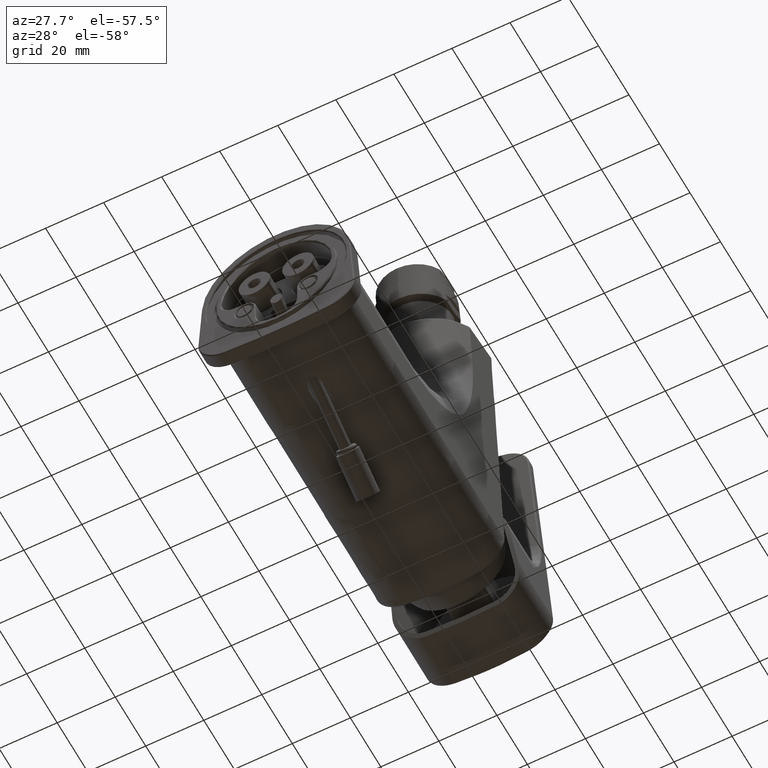
[diagram: clean part render]
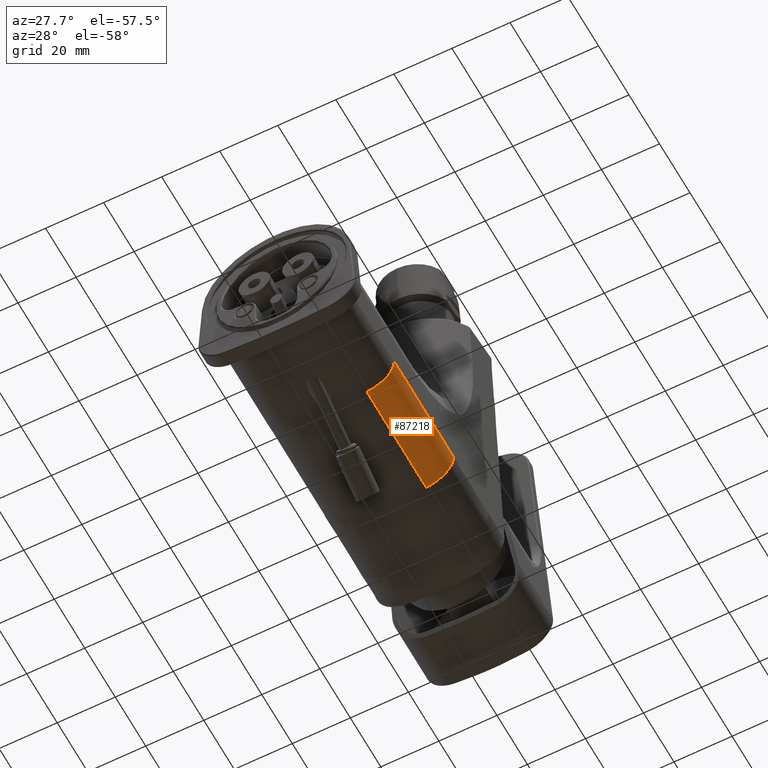
[diagram: same view with one face highlighted and labeled with its STEP entity id]
A machine part, auxiliary view. The second image highlights one B-rep face of the part: STEP entity #87218.
In plain terms, the highlighted face is a freeform B-spline surface patch.
Its self-contained STEP definition (entity closure, byte-faithful):
#7366=CARTESIAN_POINT('',(2.208970727463E1,6.939819935584E1,-1.168438949637E1));
#7396=CARTESIAN_POINT('',(1.209893123909E1,6.939819935584E1,-1.211380096307E1));
#7397=DIRECTION('',(-3.572977058821E-7,9.999999999654E-1,8.312962321084E-6));
#7398=DIRECTION('',(9.990776035537E-1,0.E0,4.294114667048E-2));
#7399=AXIS2_PLACEMENT_3D('',#7396,#7397,#7398);
#7458=CARTESIAN_POINT('',(1.27359259E1,3.041451591486E1,-2.209381710465E1));
#7459=CARTESIAN_POINT('',(1.273595817326E1,3.474692180240E1,-2.209377894983E1));
#7460=CARTESIAN_POINT('',(1.273602268487E1,4.341114937780E1,-2.209370264058E1));
#7461=CARTESIAN_POINT('',(1.273611934752E1,5.640573628581E1,-2.209358817792E1));
#7462=CARTESIAN_POINT('',(1.273618371942E1,6.506762831574E1,-2.209351187030E1));
#7463=CARTESIAN_POINT('',(1.273621588789E1,6.939828254418E1,-2.209347371670E1));
#7465=CARTESIAN_POINT('',(1.273621588789E1,6.939828254418E1,-2.209347371670E1));
#30454=CARTESIAN_POINT('',(2.208972119977E1,3.041443277032E1,
-1.168471348161E1));
#30455=CARTESIAN_POINT('',(2.208972101071E1,3.094384713333E1,
-1.168470908292E1));
#30456=CARTESIAN_POINT('',(2.208972062887E1,3.201311111200E1,
-1.168470019876E1));
#30457=CARTESIAN_POINT('',(2.208972005213E1,3.362806745837E1,
-1.168468678033E1));
#30458=CARTESIAN_POINT('',(2.208971945512E1,3.529977214362E1,
-1.168467289008E1));
#30459=CARTESIAN_POINT('',(2.208971882721E1,3.705794391421E1,
-1.168465828104E1));
#30460=CARTESIAN_POINT('',(2.208971815860E1,3.893003649387E1,
-1.168464272502E1));
#30461=CARTESIAN_POINT('',(2.208971742856E1,4.097406515674E1,
-1.168462573985E1));
#30462=CARTESIAN_POINT('',(2.208971669488E1,4.302824546125E1,
-1.168460866985E1));
#30463=CARTESIAN_POINT('',(2.208971599780E1,4.497988628580E1,
-1.168459245149E1));
#30464=CARTESIAN_POINT('',(2.208971533686E1,4.683030896802E1,
-1.168457707387E1));
#30465=CARTESIAN_POINT('',(2.208971469247E1,4.863433444597E1,
-1.168456208146E1));
#30466=CARTESIAN_POINT('',(2.208971405742E1,5.041218288803E1,
-1.168454730624E1));
#30467=CARTESIAN_POINT('',(2.208971342499E1,5.218265027684E1,
-1.168453259201E1));
#30468=CARTESIAN_POINT('',(2.208971278561E1,5.397254495353E1,
-1.168451771596E1));
#30469=CARTESIAN_POINT('',(2.208971213085E1,5.580542795962E1,
-1.168450248226E1));
#30470=CARTESIAN_POINT('',(2.208971145383E1,5.770058250479E1,
-1.168448673061E1));
#30471=CARTESIAN_POINT('',(2.208971074707E1,5.967896632091E1,
-1.168447028676E1));
#30472=CARTESIAN_POINT('',(2.208970999892E1,6.177310712642E1,
-1.168445288030E1));
#30473=CARTESIAN_POINT('',(2.208970918841E1,6.404176366948E1,
-1.168443402271E1));
#30474=CARTESIAN_POINT('',(2.208970828825E1,6.656124701231E1,
-1.168441307952E1));
#30475=CARTESIAN_POINT('',(2.208970762292E1,6.842341834642E1,
-1.168439759968E1));
#30476=CARTESIAN_POINT('',(2.208970727463E1,6.939819935584E1,
-1.168438949637E1));
#30490=CARTESIAN_POINT('',(1.209894516424E1,3.041443277032E1,
-1.211412494831E1));
#30491=DIRECTION('',(-3.571093667506E-7,9.999999999654E-1,8.308580432545E-6));
#30492=DIRECTION('',(9.990776035537E-1,0.E0,4.294114667048E-2));
#30493=AXIS2_PLACEMENT_3D('',#30490,#30491,#30492);
#36373=CARTESIAN_POINT('',(2.208972119977E1,3.041443277032E1,
-1.168471348161E1));
#36374=CARTESIAN_POINT('',(1.27359259E1,3.041451591486E1,-2.209381710465E1));
#36375=VERTEX_POINT('',#36373);
#36376=VERTEX_POINT('',#36374);
#36650=VERTEX_POINT('',#7366);
#36652=VERTEX_POINT('',#7465);
#87131=CARTESIAN_POINT('',(2.207161153158E1,2.963475486099E1,
-1.137525993609E1));
#87132=CARTESIAN_POINT('',(2.207161147357E1,2.979720558852E1,
-1.137525858637E1));
#87133=CARTESIAN_POINT('',(2.207161101001E1,3.109528210522E1,
-1.137524780128E1));
#87134=CARTESIAN_POINT('',(2.207161019254E1,3.338437813867E1,
-1.137522878178E1));
#87135=CARTESIAN_POINT('',(2.207160911008E1,3.641537257924E1,
-1.137520359694E1));
#87136=CARTESIAN_POINT('',(2.207160812030E1,3.918672459333E1,
-1.137518056862E1));
#87137=CARTESIAN_POINT('',(2.207160716803E1,4.185296130896E1,
-1.137515841294E1));
#87138=CARTESIAN_POINT('',(2.207160622608E1,4.449022339949E1,
-1.137513649725E1));
#87139=CARTESIAN_POINT('',(2.207160529512E1,4.709660832316E1,
-1.137511483737E1));
#87140=CARTESIAN_POINT('',(2.207160438792E1,4.963640205296E1,
-1.137509373015E1));
#87141=CARTESIAN_POINT('',(2.207160350628E1,5.210452585311E1,
-1.137507321786E1));
#87142=CARTESIAN_POINT('',(2.207160263960E1,5.453070274588E1,
-1.137505305352E1));
#87143=CARTESIAN_POINT('',(2.207160177747E1,5.694407506690E1,
-1.137503299495E1));
#87144=CARTESIAN_POINT('',(2.207160091849E1,5.934854692689E1,
-1.137501300970E1));
#87145=CARTESIAN_POINT('',(2.207160006139E1,6.174765138416E1,
-1.137499306841E1));
#87146=CARTESIAN_POINT('',(2.207159918661E1,6.419620381858E1,
-1.137497271546E1));
#87147=CARTESIAN_POINT('',(2.207159824866E1,6.682145359227E1,
-1.137495089303E1));
#87148=CARTESIAN_POINT('',(2.207159752933E1,6.883473120359E1,
-1.137493415701E1));
#87149=CARTESIAN_POINT('',(2.207159711582E1,6.999205238512E1,
-1.137492453617E1));
#87150=CARTESIAN_POINT('',(2.207159704943E1,7.017787210852E1,
-1.137492299145E1));
#87151=CARTESIAN_POINT('',(2.251871117173E1,2.963480515888E1,
-1.740983493165E1));
#87152=CARTESIAN_POINT('',(2.251871111372E1,2.979725588651E1,
-1.740983358192E1));
#87153=CARTESIAN_POINT('',(2.251871065016E1,3.109533240410E1,
-1.740982279683E1));
#87154=CARTESIAN_POINT('',(2.251870983269E1,3.338442843912E1,
-1.740980377733E1));
#87155=CARTESIAN_POINT('',(2.251870875023E1,3.641542288175E1,
-1.740977859250E1));
#87156=CARTESIAN_POINT('',(2.251870776045E1,3.918677489773E1,
-1.740975556417E1));
#87157=CARTESIAN_POINT('',(2.251870680818E1,4.185301161517E1,
-1.740973340849E1));
#87158=CARTESIAN_POINT('',(2.251870586623E1,4.449027370750E1,
-1.740971149280E1));
#87159=CARTESIAN_POINT('',(2.251870493527E1,4.709665863295E1,
-1.740968983292E1));
#87160=CARTESIAN_POINT('',(2.251870402806E1,4.963645236448E1,
-1.740966872570E1));
#87161=CARTESIAN_POINT('',(2.251870314643E1,5.210457616630E1,
-1.740964821341E1));
#87162=CARTESIAN_POINT('',(2.251870227975E1,5.453075306073E1,
-1.740962804907E1));
#87163=CARTESIAN_POINT('',(2.251870141762E1,5.694412538338E1,
-1.740960799050E1));
#87164=CARTESIAN_POINT('',(2.251870055864E1,5.934859724501E1,
-1.740958800525E1));
#87165=CARTESIAN_POINT('',(2.251869970154E1,6.174770170391E1,
-1.740956806396E1));
#87166=CARTESIAN_POINT('',(2.251869882676E1,6.419625413999E1,
-1.740954771101E1));
#87167=CARTESIAN_POINT('',(2.251869788881E1,6.682150391546E1,
-1.740952588858E1));
#87168=CARTESIAN_POINT('',(2.251869716948E1,6.883478152815E1,
-1.740950915256E1));
#87169=CARTESIAN_POINT('',(2.251869675597E1,6.999210271047E1,
-1.740949953173E1));
#87170=CARTESIAN_POINT('',(2.251869668958E1,7.017792243400E1,
-1.740949798700E1));
#87171=CARTESIAN_POINT('',(1.847416936130E1,2.963484110985E1,
-2.191068762975E1));
#87172=CARTESIAN_POINT('',(1.847416930328E1,2.979729183757E1,
-2.191068628003E1));
#87173=CARTESIAN_POINT('',(1.847416883973E1,3.109536835578E1,
-2.191067549494E1));
#87174=CARTESIAN_POINT('',(1.847416802226E1,3.338446439192E1,
-2.191065647544E1));
#87175=CARTESIAN_POINT('',(1.847416693980E1,3.641545883602E1,
-2.191063129060E1));
#87176=CARTESIAN_POINT('',(1.847416595002E1,3.918681085336E1,
-2.191060826228E1));
#87177=CARTESIAN_POINT('',(1.847416499775E1,4.185304757210E1,
-2.191058610660E1));
#87178=CARTESIAN_POINT('',(1.847416405580E1,4.449030966570E1,
-2.191056419091E1));
#87179=CARTESIAN_POINT('',(1.847416312484E1,4.709669459243E1,
-2.191054253103E1));
#87180=CARTESIAN_POINT('',(1.847416221763E1,4.963648832519E1,
-2.191052142381E1));
#87181=CARTESIAN_POINT('',(1.847416133600E1,5.210461212821E1,
-2.191050091152E1));
#87182=CARTESIAN_POINT('',(1.847416046932E1,5.453078902382E1,
-2.191048074718E1));
#87183=CARTESIAN_POINT('',(1.847415960719E1,5.694416134765E1,
-2.191046068860E1));
#87184=CARTESIAN_POINT('',(1.847415874820E1,5.934863321044E1,
-2.191044070336E1));
#87185=CARTESIAN_POINT('',(1.847415789111E1,6.174773767051E1,
-2.191042076207E1));
#87186=CARTESIAN_POINT('',(1.847415701633E1,6.419629010778E1,
-2.191040040912E1));
#87187=CARTESIAN_POINT('',(1.847415607838E1,6.682153988452E1,
-2.191037858669E1));
#87188=CARTESIAN_POINT('',(1.847415535905E1,6.883481749819E1,
-2.191036185067E1));
#87189=CARTESIAN_POINT('',(1.847415494554E1,6.999213868107E1,
-2.191035222983E1));
#87190=CARTESIAN_POINT('',(1.847415487915E1,7.017795840469E1,
-2.191035068511E1));
#87191=CARTESIAN_POINT('',(1.242629733559E1,2.963484059590E1,
-2.210877202668E1));
#87192=CARTESIAN_POINT('',(1.242629727757E1,2.979729132362E1,
-2.210877067696E1));
#87193=CARTESIAN_POINT('',(1.242629681402E1,3.109536784182E1,
-2.210875989186E1));
#87194=CARTESIAN_POINT('',(1.242629599655E1,3.338446387794E1,
-2.210874087236E1));
#87195=CARTESIAN_POINT('',(1.242629491408E1,3.641545832203E1,
-2.210871568753E1));
#87196=CARTESIAN_POINT('',(1.242629392431E1,3.918681033934E1,
-2.210869265920E1));
#87197=CARTESIAN_POINT('',(1.242629297204E1,4.185304705806E1,
-2.210867050352E1));
#87198=CARTESIAN_POINT('',(1.242629203009E1,4.449030915166E1,
-2.210864858783E1));
#87199=CARTESIAN_POINT('',(1.242629109913E1,4.709669407836E1,
-2.210862692796E1));
#87200=CARTESIAN_POINT('',(1.242629019192E1,4.963648781110E1,
-2.210860582074E1));
#87201=CARTESIAN_POINT('',(1.242628931029E1,5.210461161411E1,
-2.210858530844E1));
#87202=CARTESIAN_POINT('',(1.242628844361E1,5.453078850970E1,
-2.210856514410E1));
#87203=CARTESIAN_POINT('',(1.242628758148E1,5.694416083351E1,
-2.210854508553E1));
#87204=CARTESIAN_POINT('',(1.242628672249E1,5.934863269629E1,
-2.210852510028E1));
#87205=CARTESIAN_POINT('',(1.242628586540E1,6.174773715634E1,
-2.210850515900E1));
#87206=CARTESIAN_POINT('',(1.242628499062E1,6.419628959360E1,
-2.210848480605E1));
#87207=CARTESIAN_POINT('',(1.242628405267E1,6.682153937032E1,
-2.210846298361E1));
#87208=CARTESIAN_POINT('',(1.242628333334E1,6.883481698398E1,
-2.210844624759E1));
#87209=CARTESIAN_POINT('',(1.242628291983E1,6.999213816684E1,
-2.210843662676E1));
#87210=CARTESIAN_POINT('',(1.242628285344E1,7.017795789046E1,
-2.210843508203E1));
#87211=(BOUNDED_SURFACE()B_SPLINE_SURFACE(3,3,((#87131,#87132,#87133,#87134,
#87135,#87136,#87137,#87138,#87139,#87140,#87141,#87142,#87143,#87144,#87145,
#87146,#87147,#87148,#87149,#87150),(#87151,#87152,#87153,#87154,#87155,#87156,
#87157,#87158,#87159,#87160,#87161,#87162,#87163,#87164,#87165,#87166,#87167,
#87168,#87169,#87170),(#87171,#87172,#87173,#87174,#87175,#87176,#87177,#87178,
#87179,#87180,#87181,#87182,#87183,#87184,#87185,#87186,#87187,#87188,#87189,
#87190),(#87191,#87192,#87193,#87194,#87195,#87196,#87197,#87198,#87199,#87200,
#87201,#87202,#87203,#87204,#87205,#87206,#87207,#87208,#87209,#87210)),
.UNSPECIFIED.,.F.,.F.,.F.)B_SPLINE_SURFACE_WITH_KNOTS((4,4),(4,1,1,1,1,1,1,1,1,
1,1,1,1,1,1,1,1,4),(0.E0,1.E0),(-1.233855912403E-2,0.E0,8.625375925221E-2,
1.615242925811E-1,2.302119829121E-1,2.967452184162E-1,3.640319689405E-1,
4.305189604487E-1,4.947069940902E-1,5.569359686640E-1,6.179794409100E-1,
6.789814968428E-1,7.402379305846E-1,8.006053894556E-1,8.611997770644E-1,
9.262119144520E-1,1.E0,1.014113495695E0),.UNSPECIFIED.)GEOMETRIC_REPRESENTATION_ITEM()RATIONAL_B_SPLINE_SURFACE(((1.181763141565E0,1.181763141565E0,
1.181763141565E0,1.181763141565E0,1.181763141565E0,1.181763141565E0,
1.181763141565E0,1.181763141565E0,1.181763141565E0,1.181763141565E0,
1.181763141565E0,1.181763141565E0,1.181763141565E0,1.181763141565E0,
1.181763141565E0,1.181763141565E0,1.181763141565E0,1.181763141565E0,
1.181763141565E0,1.181763141565E0),(9.394122861450E-1,9.394122861450E-1,
9.394122861450E-1,9.394122861450E-1,9.394122861450E-1,9.394122861450E-1,
9.394122861450E-1,9.394122861450E-1,9.394122861450E-1,9.394122861450E-1,
9.394122861450E-1,9.394122861450E-1,9.394122861450E-1,9.394122861450E-1,
9.394122861450E-1,9.394122861450E-1,9.394122861450E-1,9.394122861450E-1,
9.394122861450E-1,9.394122861450E-1),(9.394122861450E-1,9.394122861450E-1,
9.394122861450E-1,9.394122861450E-1,9.394122861450E-1,9.394122861450E-1,
9.394122861450E-1,9.394122861450E-1,9.394122861450E-1,9.394122861450E-1,
9.394122861450E-1,9.394122861450E-1,9.394122861450E-1,9.394122861450E-1,
9.394122861450E-1,9.394122861450E-1,9.394122861450E-1,9.394122861450E-1,
9.394122861450E-1,9.394122861450E-1),(1.181763141565E0,1.181763141565E0,
1.181763141565E0,1.181763141565E0,1.181763141565E0,1.181763141565E0,
1.181763141565E0,1.181763141565E0,1.181763141565E0,1.181763141565E0,
1.181763141565E0,1.181763141565E0,1.181763141565E0,1.181763141565E0,
1.181763141565E0,1.181763141565E0,1.181763141565E0,1.181763141565E0,
1.181763141565E0,1.181763141565E0)))REPRESENTATION_ITEM('')SURFACE());
#87212=ORIENTED_EDGE('',*,*,#50787,.F.);
#87213=ORIENTED_EDGE('',*,*,#87116,.T.);
#87214=ORIENTED_EDGE('',*,*,#50535,.T.);
#87215=ORIENTED_EDGE('',*,*,#50733,.F.);
#87216=EDGE_LOOP('',(#87212,#87213,#87214,#87215));
#87217=FACE_OUTER_BOUND('',#87216,.F.);
#87218=ADVANCED_FACE('',(#87217),#87211,.T.);
#7400=CIRCLE('',#7399,1.E1);
#7464=B_SPLINE_CURVE_WITH_KNOTS('',3,(#7458,#7459,#7460,#7461,#7462,#7463),
.UNSPECIFIED.,.F.,.F.,(4,1,1,4),(0.E0,3.333333333333E-1,6.666666666667E-1,1.E0),
.UNSPECIFIED.);
#30477=B_SPLINE_CURVE_WITH_KNOTS('',3,(#30454,#30455,#30456,#30457,#30458,
#30459,#30460,#30461,#30462,#30463,#30464,#30465,#30466,#30467,#30468,#30469,
#30470,#30471,#30472,#30473,#30474,#30475,#30476),.UNSPECIFIED.,.F.,.F.,(4,1,1,
1,1,1,1,1,1,1,1,1,1,1,1,1,1,1,1,1,4),(0.E0,5.E-2,1.E-1,1.5E-1,2.E-1,2.5E-1,
3.E-1,3.5E-1,4.E-1,4.5E-1,5.E-1,5.5E-1,6.E-1,6.5E-1,7.E-1,7.5E-1,8.E-1,8.5E-1,
9.E-1,9.5E-1,1.E0),.UNSPECIFIED.);
#30494=CIRCLE('',#30493,1.E1);
#50535=EDGE_CURVE('',#36650,#36652,#7400,.T.);
#50733=EDGE_CURVE('',#36376,#36652,#7464,.T.);
#50787=EDGE_CURVE('',#36375,#36376,#30494,.T.);
#87116=EDGE_CURVE('',#36375,#36650,#30477,.T.);